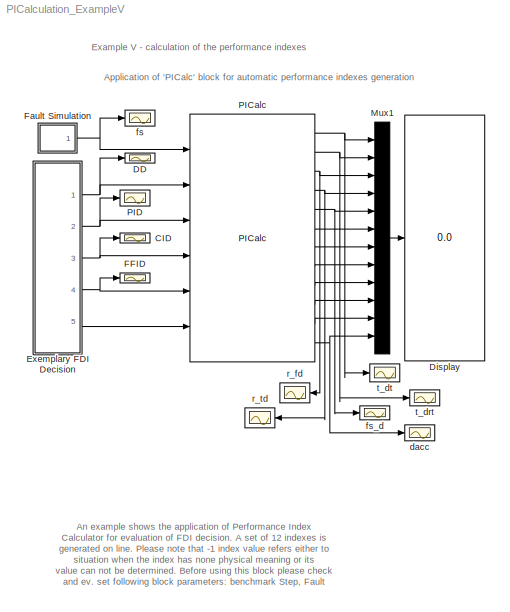
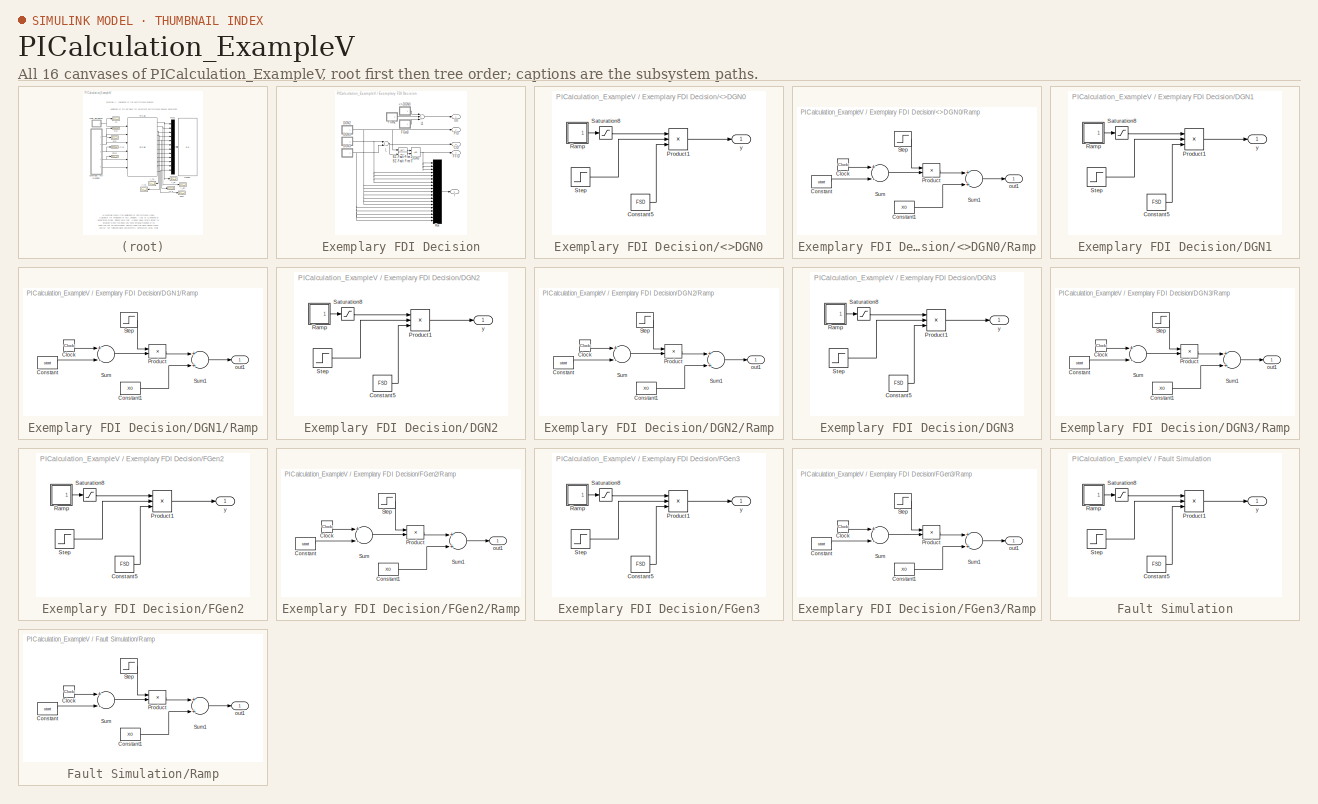
[diagram: thumbnail index - all 16 canvases of the model, root first then tree order]
MODEL PICalculation_ExampleV
KIND model
CONFIG AbsTol = 1e-6
CONFIG FixedStep = 0.1
CONFIG MaxStep = auto
CONFIG RelTol = 1e-3
CONFIG Solver = ode4
CONFIG StartTime = 0.0
CONFIG StopTime = 100
BLOCK [Scope] CID
  Decimation = 1
  Floating = off
  Grid = on
  LimitMaxRows = off
  MaxRows = 5000
  Ports = [1, 0, 0, 0, 0]
  SampleInput = off
  SampleTime = 0
  SaveName = ScopeData
  SaveToWorkspace = off
  TickLabels = on
  TimeRange = auto
  YMax = 5
  YMin = 0
  ZoomMode = on
BLOCK [Scope] DD
  Decimation = 1
  Floating = off
  Grid = on
  LimitMaxRows = off
  MaxRows = 5000
  Ports = [1, 0, 0, 0, 0]
  SampleInput = off
  SampleTime = 0
  SaveName = ScopeData
  SaveToWorkspace = off
  TickLabels = on
  TimeRange = 100
  YMax = 1.1
  YMin = 0
  ZoomMode = on
BLOCK [Display] Display
  Decimation = 1
  Floating = off
  Format = short
  Ports = [1, 0, 0, 0, 0]
  SampleTime = -1
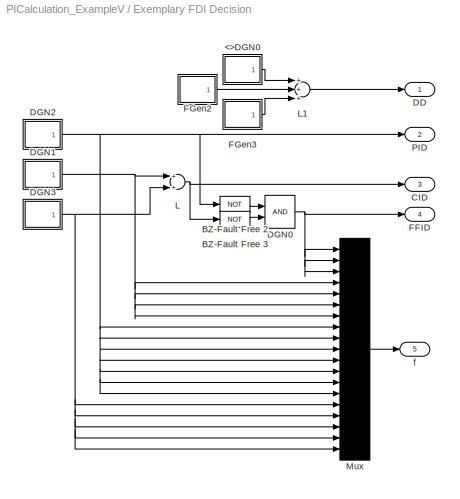
BLOCK [SubSystem] Exemplary FDI Decision
  Ports = [0, 5, 0, 0, 0]
  ShowPortLabels = on
BLOCK [SubSystem] Exemplary FDI Decision/<>DGN0
  MaskDescription = Used for generation of abrupt and incipient standarised fault strength values.\n\nParameters: \nFrom - fault start time [s]\nTo - fault decay time [s] \nMax Fault Strength - maximum fault strength value that will be reached during simulation [standarised range - 0 1]\nFault Development Time - after this time Max Fault Strength will be reached [s]\nDirection - defines the sign of fault strength.  <repeated x7 — deduplicated; at blocks: <>DGN0, DGN1, DGN2, DGN3, FGen2, FGen3, Fault Simulation>
  MaskDisplay = disp('FGen')
  MaskHelp = web( [ 'file:///' which('DABLib.pdf')]);
  MaskIconFrame = on
  MaskIconOpaque = on
  MaskIconRotate = port
  MaskIconUnits = normalized
  MaskInitialization = if FDT==0\n FDS = 99999999999999999999999999;\nelse\n FDS = MFS / FDT;\nend\nif To==inf\n To = 99999999999999999999999999;\nend\nif FSD >= 0\nFSD=1;\nelse\nFSD=-1;\nend
  MaskPromptString = From:|To:|Max Fault Strength:|Fault Development Time:|Direction:
  MaskStyleString = edit,edit,edit,edit,edit
  MaskTunableValueString = on,on,on,on,on
  MaskType = Fault generator
  MaskValueString = 50|80|1|0|1
  MaskVariables = From=@1;To=@2;MFS=@3;FDT=@4;FSD=@5;
  Ports = [0, 1, 0, 0, 0]
  ShowPortLabels = on
BLOCK [Constant] Exemplary FDI Decision/<>DGN0/Constant5
  Value = FSD
BLOCK [Product] Exemplary FDI Decision/<>DGN0/Product1
  Inputs = 3
  Ports = [3, 1, 0, 0, 0]
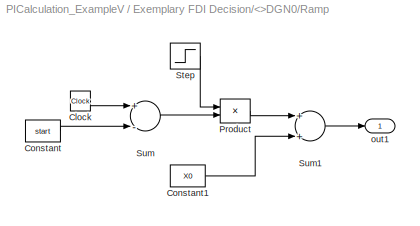
BLOCK [SubSystem] Exemplary FDI Decision/<>DGN0/Ramp
  MaskDescription = ramp
  MaskDisplay = plot([0:10],[1,1,1,1:8])
  MaskIconFrame = on
  MaskIconOpaque = on
  MaskIconRotate = none
  MaskIconUnits = autoscale
  MaskPromptString = Slope:|Start time:|Initial output:
  MaskStyleString = edit,edit,edit
  MaskTunableValueString = on,on,on
  MaskType = Ramp
  MaskValueString = FDS|From|0
  MaskVariables = slope=@1;start=@2;X0=@3;
  Ports = [0, 1, 0, 0, 0]
  ShowPortLabels = on
BLOCK [Clock] Exemplary FDI Decision/<>DGN0/Ramp/Clock
BLOCK [Constant] Exemplary FDI Decision/<>DGN0/Ramp/Constant
  Value = start
BLOCK [Constant] Exemplary FDI Decision/<>DGN0/Ramp/Constant1
  Value = X0
BLOCK [Product] Exemplary FDI Decision/<>DGN0/Ramp/Product
  Inputs = 2
  Ports = [2, 1, 0, 0, 0]
BLOCK [Step] Exemplary FDI Decision/<>DGN0/Ramp/Step
  After = slope
  Before = 0
  Time = start
BLOCK [Sum] Exemplary FDI Decision/<>DGN0/Ramp/Sum
  Inputs = +-
  Ports = [2, 1, 0, 0, 0]
BLOCK [Sum] Exemplary FDI Decision/<>DGN0/Ramp/Sum1
  Inputs = ++
  Ports = [2, 1, 0, 0, 0]
BLOCK [Outport] Exemplary FDI Decision/<>DGN0/Ramp/out1
  InitialOutput = []
  OutputWhenDisabled = held
  Port = 1
BLOCK [Saturate] Exemplary FDI Decision/<>DGN0/Saturation8
  LowerLimit = 0
  UpperLimit = MFS
BLOCK [Step] Exemplary FDI Decision/<>DGN0/Step
  After = 0
  Before = 1
  Time = To
BLOCK [Outport] Exemplary FDI Decision/<>DGN0/y
  InitialOutput = 0
  OutputWhenDisabled = held
  Port = 1
BLOCK [Logic] Exemplary FDI Decision/BZ-Fault Free 2
  Inputs = 1
  Operator = NOT
  Ports = [1, 1, 0, 0, 0]
BLOCK [Logic] Exemplary FDI Decision/BZ-Fault Free 3
  Inputs = 1
  Operator = NOT
  Ports = [1, 1, 0, 0, 0]
BLOCK [Outport] Exemplary FDI Decision/CID
  InitialOutput = 0
  OutputWhenDisabled = held
  Port = 3
BLOCK [Outport] Exemplary FDI Decision/DD
  InitialOutput = 0
  OutputWhenDisabled = held
  Port = 1
BLOCK [Logic] Exemplary FDI Decision/DGN0
  Inputs = 2
  Operator = AND
  Ports = [2, 1, 0, 0, 0]
BLOCK [SubSystem] Exemplary FDI Decision/DGN1
  MaskDisplay = disp('FGen')
  MaskHelp = web( [ 'file:///' which('DABLib.pdf')]);
  MaskIconFrame = on
  MaskIconOpaque = on
  MaskIconRotate = port
  MaskIconUnits = normalized
  MaskInitialization = if FDT==0\n FDS = 99999999999999999999999999;\nelse\n FDS = MFS / FDT;\nend\nif To==inf\n To = 99999999999999999999999999;\nend\nif FSD >= 0\nFSD=1;\nelse\nFSD=-1;\nend
  MaskPromptString = From:|To:|Max Fault Strength:|Fault Development Time:|Direction:
  MaskStyleString = edit,edit,edit,edit,edit
  MaskTunableValueString = on,on,on,on,on
  MaskType = Fault generator
  MaskValueString = 25|35|1|0|1
  MaskVariables = From=@1;To=@2;MFS=@3;FDT=@4;FSD=@5;
  Ports = [0, 1, 0, 0, 0]
  ShowPortLabels = on
BLOCK [Constant] Exemplary FDI Decision/DGN1/Constant5
  Value = FSD
BLOCK [Product] Exemplary FDI Decision/DGN1/Product1
  Inputs = 3
  Ports = [3, 1, 0, 0, 0]
BLOCK [SubSystem] Exemplary FDI Decision/DGN1/Ramp
  MaskDescription = ramp
  MaskDisplay = plot([0:10],[1,1,1,1:8])
  MaskIconFrame = on
  MaskIconOpaque = on
  MaskIconRotate = none
  MaskIconUnits = autoscale
  MaskPromptString = Slope:|Start time:|Initial output:
  MaskStyleString = edit,edit,edit
  MaskTunableValueString = on,on,on
  MaskType = Ramp
  MaskValueString = FDS|From|0
  MaskVariables = slope=@1;start=@2;X0=@3;
  Ports = [0, 1, 0, 0, 0]
  ShowPortLabels = on
BLOCK [Clock] Exemplary FDI Decision/DGN1/Ramp/Clock
BLOCK [Constant] Exemplary FDI Decision/DGN1/Ramp/Constant
  Value = start
BLOCK [Constant] Exemplary FDI Decision/DGN1/Ramp/Constant1
  Value = X0
BLOCK [Product] Exemplary FDI Decision/DGN1/Ramp/Product
  Inputs = 2
  Ports = [2, 1, 0, 0, 0]
BLOCK [Step] Exemplary FDI Decision/DGN1/Ramp/Step
  After = slope
  Before = 0
  Time = start
BLOCK [Sum] Exemplary FDI Decision/DGN1/Ramp/Sum
  Inputs = +-
  Ports = [2, 1, 0, 0, 0]
BLOCK [Sum] Exemplary FDI Decision/DGN1/Ramp/Sum1
  Inputs = ++
  Ports = [2, 1, 0, 0, 0]
BLOCK [Outport] Exemplary FDI Decision/DGN1/Ramp/out1
  InitialOutput = []
  OutputWhenDisabled = held
  Port = 1
BLOCK [Saturate] Exemplary FDI Decision/DGN1/Saturation8
  LowerLimit = 0
  UpperLimit = MFS
BLOCK [Step] Exemplary FDI Decision/DGN1/Step
  After = 0
  Before = 1
  Time = To
BLOCK [Outport] Exemplary FDI Decision/DGN1/y
  InitialOutput = 0
  OutputWhenDisabled = held
  Port = 1
BLOCK [SubSystem] Exemplary FDI Decision/DGN2
  MaskDisplay = disp('FGen')
  MaskHelp = web( [ 'file:///' which('DABLib.pdf')]);
  MaskIconFrame = on
  MaskIconOpaque = on
  MaskIconRotate = port
  MaskIconUnits = normalized
  MaskInitialization = if FDT==0\n FDS = 99999999999999999999999999;\nelse\n FDS = MFS / FDT;\nend\nif To==inf\n To = 99999999999999999999999999;\nend\nif FSD >= 0\nFSD=1;\nelse\nFSD=-1;\nend
  MaskPromptString = From:|To:|Max Fault Strength:|Fault Development Time:|Direction:
  MaskStyleString = edit,edit,edit,edit,edit
  MaskTunableValueString = on,on,on,on,on
  MaskType = Fault generator
  MaskValueString = 45|50|1|0|1
  MaskVariables = From=@1;To=@2;MFS=@3;FDT=@4;FSD=@5;
  Ports = [0, 1, 0, 0, 0]
  ShowPortLabels = on
BLOCK [Constant] Exemplary FDI Decision/DGN2/Constant5
  Value = FSD
BLOCK [Product] Exemplary FDI Decision/DGN2/Product1
  Inputs = 3
  Ports = [3, 1, 0, 0, 0]
BLOCK [SubSystem] Exemplary FDI Decision/DGN2/Ramp
  MaskDescription = ramp
  MaskDisplay = plot([0:10],[1,1,1,1:8])
  MaskIconFrame = on
  MaskIconOpaque = on
  MaskIconRotate = none
  MaskIconUnits = autoscale
  MaskPromptString = Slope:|Start time:|Initial output:
  MaskStyleString = edit,edit,edit
  MaskTunableValueString = on,on,on
  MaskType = Ramp
  MaskValueString = FDS|From|0
  MaskVariables = slope=@1;start=@2;X0=@3;
  Ports = [0, 1, 0, 0, 0]
  ShowPortLabels = on
BLOCK [Clock] Exemplary FDI Decision/DGN2/Ramp/Clock
BLOCK [Constant] Exemplary FDI Decision/DGN2/Ramp/Constant
  Value = start
BLOCK [Constant] Exemplary FDI Decision/DGN2/Ramp/Constant1
  Value = X0
BLOCK [Product] Exemplary FDI Decision/DGN2/Ramp/Product
  Inputs = 2
  Ports = [2, 1, 0, 0, 0]
BLOCK [Step] Exemplary FDI Decision/DGN2/Ramp/Step
  After = slope
  Before = 0
  Time = start
BLOCK [Sum] Exemplary FDI Decision/DGN2/Ramp/Sum
  Inputs = +-
  Ports = [2, 1, 0, 0, 0]
BLOCK [Sum] Exemplary FDI Decision/DGN2/Ramp/Sum1
  Inputs = ++
  Ports = [2, 1, 0, 0, 0]
BLOCK [Outport] Exemplary FDI Decision/DGN2/Ramp/out1
  InitialOutput = []
  OutputWhenDisabled = held
  Port = 1
BLOCK [Saturate] Exemplary FDI Decision/DGN2/Saturation8
  LowerLimit = 0
  UpperLimit = MFS
BLOCK [Step] Exemplary FDI Decision/DGN2/Step
  After = 0
  Before = 1
  Time = To
BLOCK [Outport] Exemplary FDI Decision/DGN2/y
  InitialOutput = 0
  OutputWhenDisabled = held
  Port = 1
BLOCK [SubSystem] Exemplary FDI Decision/DGN3
  MaskDisplay = disp('FGen')
  MaskHelp = web( [ 'file:///' which('DABLib.pdf')]);
  MaskIconFrame = on
  MaskIconOpaque = on
  MaskIconRotate = port
  MaskIconUnits = normalized
  MaskInitialization = if FDT==0\n FDS = 99999999999999999999999999;\nelse\n FDS = MFS / FDT;\nend\nif To==inf\n To = 99999999999999999999999999;\nend\nif FSD >= 0\nFSD=1;\nelse\nFSD=-1;\nend
  MaskPromptString = From:|To:|Max Fault Strength:|Fault Development Time:|Direction:
  MaskStyleString = edit,edit,edit,edit,edit
  MaskTunableValueString = on,on,on,on,on
  MaskType = Fault generator
  MaskValueString = 30|40|1|0|1
  MaskVariables = From=@1;To=@2;MFS=@3;FDT=@4;FSD=@5;
  Ports = [0, 1, 0, 0, 0]
  ShowPortLabels = on
BLOCK [Constant] Exemplary FDI Decision/DGN3/Constant5
  Value = FSD
BLOCK [Product] Exemplary FDI Decision/DGN3/Product1
  Inputs = 3
  Ports = [3, 1, 0, 0, 0]
BLOCK [SubSystem] Exemplary FDI Decision/DGN3/Ramp
  MaskDescription = ramp
  MaskDisplay = plot([0:10],[1,1,1,1:8])
  MaskIconFrame = on
  MaskIconOpaque = on
  MaskIconRotate = none
  MaskIconUnits = autoscale
  MaskPromptString = Slope:|Start time:|Initial output:
  MaskStyleString = edit,edit,edit
  MaskTunableValueString = on,on,on
  MaskType = Ramp
  MaskValueString = FDS|From|0
  MaskVariables = slope=@1;start=@2;X0=@3;
  Ports = [0, 1, 0, 0, 0]
  ShowPortLabels = on
BLOCK [Clock] Exemplary FDI Decision/DGN3/Ramp/Clock
BLOCK [Constant] Exemplary FDI Decision/DGN3/Ramp/Constant
  Value = start
BLOCK [Constant] Exemplary FDI Decision/DGN3/Ramp/Constant1
  Value = X0
BLOCK [Product] Exemplary FDI Decision/DGN3/Ramp/Product
  Inputs = 2
  Ports = [2, 1, 0, 0, 0]
BLOCK [Step] Exemplary FDI Decision/DGN3/Ramp/Step
  After = slope
  Before = 0
  Time = start
BLOCK [Sum] Exemplary FDI Decision/DGN3/Ramp/Sum
  Inputs = +-
  Ports = [2, 1, 0, 0, 0]
BLOCK [Sum] Exemplary FDI Decision/DGN3/Ramp/Sum1
  Inputs = ++
  Ports = [2, 1, 0, 0, 0]
BLOCK [Outport] Exemplary FDI Decision/DGN3/Ramp/out1
  InitialOutput = []
  OutputWhenDisabled = held
  Port = 1
BLOCK [Saturate] Exemplary FDI Decision/DGN3/Saturation8
  LowerLimit = 0
  UpperLimit = MFS
BLOCK [Step] Exemplary FDI Decision/DGN3/Step
  After = 0
  Before = 1
  Time = To
BLOCK [Outport] Exemplary FDI Decision/DGN3/y
  InitialOutput = 0
  OutputWhenDisabled = held
  Port = 1
BLOCK [Outport] Exemplary FDI Decision/FFID
  InitialOutput = 0
  OutputWhenDisabled = held
  Port = 4
BLOCK [SubSystem] Exemplary FDI Decision/FGen2
  MaskDisplay = disp('FGen')
  MaskHelp = web( [ 'file:///' which('DABLib.pdf')]);
  MaskIconFrame = on
  MaskIconOpaque = on
  MaskIconRotate = port
  MaskIconUnits = normalized
  MaskInitialization = if FDT==0\n FDS = 99999999999999999999999999;\nelse\n FDS = MFS / FDT;\nend\nif To==inf\n To = 99999999999999999999999999;\nend\nif FSD >= 0\nFSD=1;\nelse\nFSD=-1;\nend
  MaskPromptString = From:|To:|Max Fault Strength:|Fault Development Time:|Direction:
  MaskStyleString = edit,edit,edit,edit,edit
  MaskTunableValueString = on,on,on,on,on
  MaskType = Fault generator
  MaskValueString = 35|45|1|0|1
  MaskVariables = From=@1;To=@2;MFS=@3;FDT=@4;FSD=@5;
  Ports = [0, 1, 0, 0, 0]
  ShowPortLabels = on
BLOCK [Constant] Exemplary FDI Decision/FGen2/Constant5
  Value = FSD
BLOCK [Product] Exemplary FDI Decision/FGen2/Product1
  Inputs = 3
  Ports = [3, 1, 0, 0, 0]
BLOCK [SubSystem] Exemplary FDI Decision/FGen2/Ramp
  MaskDescription = ramp
  MaskDisplay = plot([0:10],[1,1,1,1:8])
  MaskIconFrame = on
  MaskIconOpaque = on
  MaskIconRotate = none
  MaskIconUnits = autoscale
  MaskPromptString = Slope:|Start time:|Initial output:
  MaskStyleString = edit,edit,edit
  MaskTunableValueString = on,on,on
  MaskType = Ramp
  MaskValueString = FDS|From|0
  MaskVariables = slope=@1;start=@2;X0=@3;
  Ports = [0, 1, 0, 0, 0]
  ShowPortLabels = on
BLOCK [Clock] Exemplary FDI Decision/FGen2/Ramp/Clock
BLOCK [Constant] Exemplary FDI Decision/FGen2/Ramp/Constant
  Value = start
BLOCK [Constant] Exemplary FDI Decision/FGen2/Ramp/Constant1
  Value = X0
BLOCK [Product] Exemplary FDI Decision/FGen2/Ramp/Product
  Inputs = 2
  Ports = [2, 1, 0, 0, 0]
BLOCK [Step] Exemplary FDI Decision/FGen2/Ramp/Step
  After = slope
  Before = 0
  Time = start
BLOCK [Sum] Exemplary FDI Decision/FGen2/Ramp/Sum
  Inputs = +-
  Ports = [2, 1, 0, 0, 0]
BLOCK [Sum] Exemplary FDI Decision/FGen2/Ramp/Sum1
  Inputs = ++
  Ports = [2, 1, 0, 0, 0]
BLOCK [Outport] Exemplary FDI Decision/FGen2/Ramp/out1
  InitialOutput = []
  OutputWhenDisabled = held
  Port = 1
BLOCK [Saturate] Exemplary FDI Decision/FGen2/Saturation8
  LowerLimit = 0
  UpperLimit = MFS
BLOCK [Step] Exemplary FDI Decision/FGen2/Step
  After = 0
  Before = 1
  Time = To
BLOCK [Outport] Exemplary FDI Decision/FGen2/y
  InitialOutput = 0
  OutputWhenDisabled = held
  Port = 1
BLOCK [SubSystem] Exemplary FDI Decision/FGen3
  MaskDisplay = disp('FGen')
  MaskHelp = web( [ 'file:///' which('DABLib.pdf')]);
  MaskIconFrame = on
  MaskIconOpaque = on
  MaskIconRotate = port
  MaskIconUnits = normalized
  MaskInitialization = if FDT==0\n FDS = 99999999999999999999999999;\nelse\n FDS = MFS / FDT;\nend\nif To==inf\n To = 99999999999999999999999999;\nend\nif FSD >= 0\nFSD=1;\nelse\nFSD=-1;\nend
  MaskPromptString = From:|To:|Max Fault Strength:|Fault Development Time:|Direction:
  MaskStyleString = edit,edit,edit,edit,edit
  MaskTunableValueString = on,on,on,on,on
  MaskType = Fault generator
  MaskValueString = 90|95|1|0|1
  MaskVariables = From=@1;To=@2;MFS=@3;FDT=@4;FSD=@5;
  Ports = [0, 1, 0, 0, 0]
  ShowPortLabels = on
BLOCK [Constant] Exemplary FDI Decision/FGen3/Constant5
  Value = FSD
BLOCK [Product] Exemplary FDI Decision/FGen3/Product1
  Inputs = 3
  Ports = [3, 1, 0, 0, 0]
BLOCK [SubSystem] Exemplary FDI Decision/FGen3/Ramp
  MaskDescription = ramp
  MaskDisplay = plot([0:10],[1,1,1,1:8])
  MaskIconFrame = on
  MaskIconOpaque = on
  MaskIconRotate = none
  MaskIconUnits = autoscale
  MaskPromptString = Slope:|Start time:|Initial output:
  MaskStyleString = edit,edit,edit
  MaskTunableValueString = on,on,on
  MaskType = Ramp
  MaskValueString = FDS|From|0
  MaskVariables = slope=@1;start=@2;X0=@3;
  Ports = [0, 1, 0, 0, 0]
  ShowPortLabels = on
BLOCK [Clock] Exemplary FDI Decision/FGen3/Ramp/Clock
BLOCK [Constant] Exemplary FDI Decision/FGen3/Ramp/Constant
  Value = start
BLOCK [Constant] Exemplary FDI Decision/FGen3/Ramp/Constant1
  Value = X0
BLOCK [Product] Exemplary FDI Decision/FGen3/Ramp/Product
  Inputs = 2
  Ports = [2, 1, 0, 0, 0]
BLOCK [Step] Exemplary FDI Decision/FGen3/Ramp/Step
  After = slope
  Before = 0
  Time = start
BLOCK [Sum] Exemplary FDI Decision/FGen3/Ramp/Sum
  Inputs = +-
  Ports = [2, 1, 0, 0, 0]
BLOCK [Sum] Exemplary FDI Decision/FGen3/Ramp/Sum1
  Inputs = ++
  Ports = [2, 1, 0, 0, 0]
BLOCK [Outport] Exemplary FDI Decision/FGen3/Ramp/out1
  InitialOutput = []
  OutputWhenDisabled = held
  Port = 1
BLOCK [Saturate] Exemplary FDI Decision/FGen3/Saturation8
  LowerLimit = 0
  UpperLimit = MFS
BLOCK [Step] Exemplary FDI Decision/FGen3/Step
  After = 0
  Before = 1
  Time = To
BLOCK [Outport] Exemplary FDI Decision/FGen3/y
  InitialOutput = 0
  OutputWhenDisabled = held
  Port = 1
BLOCK [Sum] Exemplary FDI Decision/L
  Inputs = ++
  Ports = [2, 1, 0, 0, 0]
BLOCK [Sum] Exemplary FDI Decision/L1
  Inputs = +++
  Ports = [3, 1, 0, 0, 0]
BLOCK [Mux] Exemplary FDI Decision/Mux
  Inputs = 19
  Ports = [19, 1, 0, 0, 0]
BLOCK [Outport] Exemplary FDI Decision/PID
  InitialOutput = 0
  OutputWhenDisabled = held
  Port = 2
BLOCK [Outport] Exemplary FDI Decision/f
  InitialOutput = 0
  OutputWhenDisabled = held
  Port = 5
BLOCK [Scope] FFID
  Decimation = 1
  Floating = off
  Grid = on
  LimitMaxRows = off
  MaxRows = 5000
  Ports = [1, 0, 0, 0, 0]
  SampleInput = off
  SampleTime = 0
  SaveName = ScopeData
  SaveToWorkspace = off
  TickLabels = on
  TimeRange = auto
  YMax = 1.1
  YMin = 0
  ZoomMode = on
BLOCK [SubSystem] Fault Simulation
  MaskDisplay = disp('FGen')
  MaskHelp = web( [ 'file:///' which('DABLib.pdf')]);
  MaskIconFrame = on
  MaskIconOpaque = on
  MaskIconRotate = port
  MaskIconUnits = normalized
  MaskInitialization = if FDT==0\n FDS = 99999999999999999999999999;\nelse\n FDS = MFS / FDT;\nend\nif To==inf\n To = 99999999999999999999999999;\nend\nif FSD >= 0\nFSD=1;\nelse\nFSD=-1;\nend
  MaskPromptString = From:|To:|Max Fault Strength:|Fault Development Time:|Direction:
  MaskStyleString = edit,edit,edit,edit,edit
  MaskTunableValueString = on,on,on,on,on
  MaskType = Fault generator
  MaskValueString = 25|75|1|25|1
  MaskVariables = From=@1;To=@2;MFS=@3;FDT=@4;FSD=@5;
  Ports = [0, 1, 0, 0, 0]
  ShowPortLabels = on
BLOCK [Constant] Fault Simulation/Constant5
  Value = FSD
BLOCK [Product] Fault Simulation/Product1
  Inputs = 3
  Ports = [3, 1, 0, 0, 0]
BLOCK [SubSystem] Fault Simulation/Ramp
  MaskDescription = ramp
  MaskDisplay = plot([0:10],[1,1,1,1:8])
  MaskIconFrame = on
  MaskIconOpaque = on
  MaskIconRotate = none
  MaskIconUnits = autoscale
  MaskPromptString = Slope:|Start time:|Initial output:
  MaskStyleString = edit,edit,edit
  MaskTunableValueString = on,on,on
  MaskType = Ramp
  MaskValueString = FDS|From|0
  MaskVariables = slope=@1;start=@2;X0=@3;
  Ports = [0, 1, 0, 0, 0]
  ShowPortLabels = on
BLOCK [Clock] Fault Simulation/Ramp/Clock
BLOCK [Constant] Fault Simulation/Ramp/Constant
  Value = start
BLOCK [Constant] Fault Simulation/Ramp/Constant1
  Value = X0
BLOCK [Product] Fault Simulation/Ramp/Product
  Inputs = 2
  Ports = [2, 1, 0, 0, 0]
BLOCK [Step] Fault Simulation/Ramp/Step
  After = slope
  Before = 0
  Time = start
BLOCK [Sum] Fault Simulation/Ramp/Sum
  Inputs = +-
  Ports = [2, 1, 0, 0, 0]
BLOCK [Sum] Fault Simulation/Ramp/Sum1
  Inputs = ++
  Ports = [2, 1, 0, 0, 0]
BLOCK [Outport] Fault Simulation/Ramp/out1
  InitialOutput = []
  OutputWhenDisabled = held
  Port = 1
BLOCK [Saturate] Fault Simulation/Saturation8
  LowerLimit = 0
  UpperLimit = MFS
BLOCK [Step] Fault Simulation/Step
  After = 0
  Before = 1
  Time = To
BLOCK [Outport] Fault Simulation/y
  InitialOutput = 0
  OutputWhenDisabled = held
  Port = 1
BLOCK [Mux] Mux1
  Inputs = 12
  Ports = [12, 1, 0, 0, 0]
BLOCK [Reference] PICalc  REF=DABLib/PICalc
  FSel = NO FAULT
  FType = Abrupt - Small
  Ports = [6, 12, 0, 0, 0]
  SourceBlock = DABLib/PICalc
  SourceType = Performance Indexes Calculator
  Step = Other
  t_hor_ini = 100
  t_on_ini = 0
BLOCK [Scope] PID
  Decimation = 1
  Floating = off
  Grid = on
  LimitMaxRows = off
  MaxRows = 5000
  Ports = [1, 0, 0, 0, 0]
  SampleInput = off
  SampleTime = 0
  SaveName = ScopeData
  SaveToWorkspace = off
  TickLabels = on
  TimeRange = auto
  YMax = 1.1
  YMin = 0
  ZoomMode = on
BLOCK [Scope] dacc
  Decimation = 1
  Floating = off
  Grid = on
  LimitMaxRows = off
  MaxRows = 5000
  Ports = [1, 0, 0, 0, 0]
  SampleInput = off
  SampleTime = 0
  SaveName = ScopeData
  SaveToWorkspace = off
  TickLabels = on
  TimeRange = 100
  YMax = 1.1
  YMin = 0
  ZoomMode = on
BLOCK [Scope] fs
  Decimation = 1
  Floating = off
  Grid = on
  LimitMaxRows = off
  MaxRows = 5000
  Ports = [1, 0, 0, 0, 0]
  SampleInput = off
  SampleTime = 0
  SaveName = ScopeData
  SaveToWorkspace = off
  TickLabels = on
  TimeRange = auto
  YMax = 1.1
  YMin = 0
  ZoomMode = on
BLOCK [Scope] fs_d
  Decimation = 1
  Floating = off
  Grid = on
  LimitMaxRows = off
  MaxRows = 5000
  Ports = [1, 0, 0, 0, 0]
  SampleInput = off
  SampleTime = 0
  SaveName = ScopeData
  SaveToWorkspace = off
  TickLabels = on
  TimeRange = 100
  YMax = 1.1
  YMin = -1
  ZoomMode = on
BLOCK [Scope] r_fd
  Decimation = 1
  Floating = off
  Grid = on
  LimitMaxRows = off
  MaxRows = 5000
  Ports = [1, 0, 0, 0, 0]
  SampleInput = off
  SampleTime = 0
  SaveName = ScopeData
  SaveToWorkspace = off
  TickLabels = on
  TimeRange = 100
  YMax = 1.1
  YMin = -1
  ZoomMode = on
BLOCK [Scope] r_td
  Decimation = 1
  Floating = off
  Grid = on
  LimitMaxRows = off
  MaxRows = 5000
  Ports = [1, 0, 0, 0, 0]
  SampleInput = off
  SampleTime = 0
  SaveName = ScopeData
  SaveToWorkspace = off
  TickLabels = on
  TimeRange = 100
  YMax = 1.1
  YMin = -1
  ZoomMode = on
BLOCK [Scope] t_drt
  Decimation = 1
  Floating = off
  Grid = on
  LimitMaxRows = off
  MaxRows = 5000
  Ports = [1, 0, 0, 0, 0]
  SampleInput = off
  SampleTime = 0
  SaveName = ScopeData
  SaveToWorkspace = off
  TickLabels = on
  TimeRange = 100
  YMax = 30
  YMin = -5
  ZoomMode = on
BLOCK [Scope] t_dt
  Decimation = 1
  Floating = off
  Grid = on
  LimitMaxRows = off
  MaxRows = 5000
  Ports = [1, 0, 0, 0, 0]
  SampleInput = off
  SampleTime = 0
  SaveName = ScopeData
  SaveToWorkspace = off
  TickLabels = on
  TimeRange = 100
  YMax = 11
  YMin = -5
  ZoomMode = on
LINE Exemplary FDI Decision/<>DGN0/Constant5:1 -> Exemplary FDI Decision/<>DGN0/Product1:3
LINE Exemplary FDI Decision/<>DGN0/Product1:1 -> Exemplary FDI Decision/<>DGN0/y:1
LINE Exemplary FDI Decision/<>DGN0/Ramp/Clock:1 -> Exemplary FDI Decision/<>DGN0/Ramp/Sum:1
LINE Exemplary FDI Decision/<>DGN0/Ramp/Constant1:1 -> Exemplary FDI Decision/<>DGN0/Ramp/Sum1:2
LINE Exemplary FDI Decision/<>DGN0/Ramp/Constant:1 -> Exemplary FDI Decision/<>DGN0/Ramp/Sum:2
LINE Exemplary FDI Decision/<>DGN0/Ramp/Product:1 -> Exemplary FDI Decision/<>DGN0/Ramp/Sum1:1
LINE Exemplary FDI Decision/<>DGN0/Ramp/Step:1 -> Exemplary FDI Decision/<>DGN0/Ramp/Product:1
LINE Exemplary FDI Decision/<>DGN0/Ramp/Sum1:1 -> Exemplary FDI Decision/<>DGN0/Ramp/out1:1
LINE Exemplary FDI Decision/<>DGN0/Ramp/Sum:1 -> Exemplary FDI Decision/<>DGN0/Ramp/Product:2
LINE Exemplary FDI Decision/<>DGN0/Ramp:1 -> Exemplary FDI Decision/<>DGN0/Saturation8:1
LINE Exemplary FDI Decision/<>DGN0/Saturation8:1 -> Exemplary FDI Decision/<>DGN0/Product1:1
LINE Exemplary FDI Decision/<>DGN0/Step:1 -> Exemplary FDI Decision/<>DGN0/Product1:2
LINE Exemplary FDI Decision/<>DGN0:1 -> Exemplary FDI Decision/L1:1
LINE Exemplary FDI Decision/BZ-Fault Free 2:1 -> Exemplary FDI Decision/DGN0:1
LINE Exemplary FDI Decision/BZ-Fault Free 3:1 -> Exemplary FDI Decision/DGN0:2
NET Exemplary FDI Decision/DGN0:1 -> Exemplary FDI Decision/FFID:1, Exemplary FDI Decision/Mux:1, Exemplary FDI Decision/Mux:2, Exemplary FDI Decision/Mux:3
LINE Exemplary FDI Decision/DGN1/Constant5:1 -> Exemplary FDI Decision/DGN1/Product1:3
LINE Exemplary FDI Decision/DGN1/Product1:1 -> Exemplary FDI Decision/DGN1/y:1
LINE Exemplary FDI Decision/DGN1/Ramp/Clock:1 -> Exemplary FDI Decision/DGN1/Ramp/Sum:1
LINE Exemplary FDI Decision/DGN1/Ramp/Constant1:1 -> Exemplary FDI Decision/DGN1/Ramp/Sum1:2
LINE Exemplary FDI Decision/DGN1/Ramp/Constant:1 -> Exemplary FDI Decision/DGN1/Ramp/Sum:2
LINE Exemplary FDI Decision/DGN1/Ramp/Product:1 -> Exemplary FDI Decision/DGN1/Ramp/Sum1:1
LINE Exemplary FDI Decision/DGN1/Ramp/Step:1 -> Exemplary FDI Decision/DGN1/Ramp/Product:1
LINE Exemplary FDI Decision/DGN1/Ramp/Sum1:1 -> Exemplary FDI Decision/DGN1/Ramp/out1:1
LINE Exemplary FDI Decision/DGN1/Ramp/Sum:1 -> Exemplary FDI Decision/DGN1/Ramp/Product:2
LINE Exemplary FDI Decision/DGN1/Ramp:1 -> Exemplary FDI Decision/DGN1/Saturation8:1
LINE Exemplary FDI Decision/DGN1/Saturation8:1 -> Exemplary FDI Decision/DGN1/Product1:1
LINE Exemplary FDI Decision/DGN1/Step:1 -> Exemplary FDI Decision/DGN1/Product1:2
NET Exemplary FDI Decision/DGN1:1 -> Exemplary FDI Decision/L:1, Exemplary FDI Decision/Mux:4, Exemplary FDI Decision/Mux:5, Exemplary FDI Decision/Mux:6, Exemplary FDI Decision/Mux:7
LINE Exemplary FDI Decision/DGN2/Constant5:1 -> Exemplary FDI Decision/DGN2/Product1:3
LINE Exemplary FDI Decision/DGN2/Product1:1 -> Exemplary FDI Decision/DGN2/y:1
LINE Exemplary FDI Decision/DGN2/Ramp/Clock:1 -> Exemplary FDI Decision/DGN2/Ramp/Sum:1
LINE Exemplary FDI Decision/DGN2/Ramp/Constant1:1 -> Exemplary FDI Decision/DGN2/Ramp/Sum1:2
LINE Exemplary FDI Decision/DGN2/Ramp/Constant:1 -> Exemplary FDI Decision/DGN2/Ramp/Sum:2
LINE Exemplary FDI Decision/DGN2/Ramp/Product:1 -> Exemplary FDI Decision/DGN2/Ramp/Sum1:1
LINE Exemplary FDI Decision/DGN2/Ramp/Step:1 -> Exemplary FDI Decision/DGN2/Ramp/Product:1
LINE Exemplary FDI Decision/DGN2/Ramp/Sum1:1 -> Exemplary FDI Decision/DGN2/Ramp/out1:1
LINE Exemplary FDI Decision/DGN2/Ramp/Sum:1 -> Exemplary FDI Decision/DGN2/Ramp/Product:2
LINE Exemplary FDI Decision/DGN2/Ramp:1 -> Exemplary FDI Decision/DGN2/Saturation8:1
LINE Exemplary FDI Decision/DGN2/Saturation8:1 -> Exemplary FDI Decision/DGN2/Product1:1
LINE Exemplary FDI Decision/DGN2/Step:1 -> Exemplary FDI Decision/DGN2/Product1:2
NET Exemplary FDI Decision/DGN2:1 -> Exemplary FDI Decision/BZ-Fault Free 2:1, Exemplary FDI Decision/Mux:10, Exemplary FDI Decision/Mux:11, Exemplary FDI Decision/Mux:12, Exemplary FDI Decision/Mux:13, Exemplary FDI Decision/Mux:14, Exemplary FDI Decision/Mux:8, Exemplary FDI Decision/Mux:9, Exemplary FDI Decision/PID:1
LINE Exemplary FDI Decision/DGN3/Constant5:1 -> Exemplary FDI Decision/DGN3/Product1:3
LINE Exemplary FDI Decision/DGN3/Product1:1 -> Exemplary FDI Decision/DGN3/y:1
LINE Exemplary FDI Decision/DGN3/Ramp/Clock:1 -> Exemplary FDI Decision/DGN3/Ramp/Sum:1
LINE Exemplary FDI Decision/DGN3/Ramp/Constant1:1 -> Exemplary FDI Decision/DGN3/Ramp/Sum1:2
LINE Exemplary FDI Decision/DGN3/Ramp/Constant:1 -> Exemplary FDI Decision/DGN3/Ramp/Sum:2
LINE Exemplary FDI Decision/DGN3/Ramp/Product:1 -> Exemplary FDI Decision/DGN3/Ramp/Sum1:1
LINE Exemplary FDI Decision/DGN3/Ramp/Step:1 -> Exemplary FDI Decision/DGN3/Ramp/Product:1
LINE Exemplary FDI Decision/DGN3/Ramp/Sum1:1 -> Exemplary FDI Decision/DGN3/Ramp/out1:1
LINE Exemplary FDI Decision/DGN3/Ramp/Sum:1 -> Exemplary FDI Decision/DGN3/Ramp/Product:2
LINE Exemplary FDI Decision/DGN3/Ramp:1 -> Exemplary FDI Decision/DGN3/Saturation8:1
LINE Exemplary FDI Decision/DGN3/Saturation8:1 -> Exemplary FDI Decision/DGN3/Product1:1
LINE Exemplary FDI Decision/DGN3/Step:1 -> Exemplary FDI Decision/DGN3/Product1:2
NET Exemplary FDI Decision/DGN3:1 -> Exemplary FDI Decision/L:2, Exemplary FDI Decision/Mux:15, Exemplary FDI Decision/Mux:16, Exemplary FDI Decision/Mux:17, Exemplary FDI Decision/Mux:18, Exemplary FDI Decision/Mux:19
LINE Exemplary FDI Decision/FGen2/Constant5:1 -> Exemplary FDI Decision/FGen2/Product1:3
LINE Exemplary FDI Decision/FGen2/Product1:1 -> Exemplary FDI Decision/FGen2/y:1
LINE Exemplary FDI Decision/FGen2/Ramp/Clock:1 -> Exemplary FDI Decision/FGen2/Ramp/Sum:1
LINE Exemplary FDI Decision/FGen2/Ramp/Constant1:1 -> Exemplary FDI Decision/FGen2/Ramp/Sum1:2
LINE Exemplary FDI Decision/FGen2/Ramp/Constant:1 -> Exemplary FDI Decision/FGen2/Ramp/Sum:2
LINE Exemplary FDI Decision/FGen2/Ramp/Product:1 -> Exemplary FDI Decision/FGen2/Ramp/Sum1:1
LINE Exemplary FDI Decision/FGen2/Ramp/Step:1 -> Exemplary FDI Decision/FGen2/Ramp/Product:1
LINE Exemplary FDI Decision/FGen2/Ramp/Sum1:1 -> Exemplary FDI Decision/FGen2/Ramp/out1:1
LINE Exemplary FDI Decision/FGen2/Ramp/Sum:1 -> Exemplary FDI Decision/FGen2/Ramp/Product:2
LINE Exemplary FDI Decision/FGen2/Ramp:1 -> Exemplary FDI Decision/FGen2/Saturation8:1
LINE Exemplary FDI Decision/FGen2/Saturation8:1 -> Exemplary FDI Decision/FGen2/Product1:1
LINE Exemplary FDI Decision/FGen2/Step:1 -> Exemplary FDI Decision/FGen2/Product1:2
LINE Exemplary FDI Decision/FGen2:1 -> Exemplary FDI Decision/L1:2
LINE Exemplary FDI Decision/FGen3/Constant5:1 -> Exemplary FDI Decision/FGen3/Product1:3
LINE Exemplary FDI Decision/FGen3/Product1:1 -> Exemplary FDI Decision/FGen3/y:1
LINE Exemplary FDI Decision/FGen3/Ramp/Clock:1 -> Exemplary FDI Decision/FGen3/Ramp/Sum:1
LINE Exemplary FDI Decision/FGen3/Ramp/Constant1:1 -> Exemplary FDI Decision/FGen3/Ramp/Sum1:2
LINE Exemplary FDI Decision/FGen3/Ramp/Constant:1 -> Exemplary FDI Decision/FGen3/Ramp/Sum:2
LINE Exemplary FDI Decision/FGen3/Ramp/Product:1 -> Exemplary FDI Decision/FGen3/Ramp/Sum1:1
LINE Exemplary FDI Decision/FGen3/Ramp/Step:1 -> Exemplary FDI Decision/FGen3/Ramp/Product:1
LINE Exemplary FDI Decision/FGen3/Ramp/Sum1:1 -> Exemplary FDI Decision/FGen3/Ramp/out1:1
LINE Exemplary FDI Decision/FGen3/Ramp/Sum:1 -> Exemplary FDI Decision/FGen3/Ramp/Product:2
LINE Exemplary FDI Decision/FGen3/Ramp:1 -> Exemplary FDI Decision/FGen3/Saturation8:1
LINE Exemplary FDI Decision/FGen3/Saturation8:1 -> Exemplary FDI Decision/FGen3/Product1:1
LINE Exemplary FDI Decision/FGen3/Step:1 -> Exemplary FDI Decision/FGen3/Product1:2
LINE Exemplary FDI Decision/FGen3:1 -> Exemplary FDI Decision/L1:3
LINE Exemplary FDI Decision/L1:1 -> Exemplary FDI Decision/DD:1
NET Exemplary FDI Decision/L:1 -> Exemplary FDI Decision/BZ-Fault Free 3:1, Exemplary FDI Decision/CID:1
LINE Exemplary FDI Decision/Mux:1 -> Exemplary FDI Decision/f:1
NET Exemplary FDI Decision:1 -> DD:1, PICalc:2
NET Exemplary FDI Decision:2 -> PICalc:3, PID:1
NET Exemplary FDI Decision:3 -> CID:1, PICalc:4
NET Exemplary FDI Decision:4 -> FFID:1, PICalc:5
LINE Exemplary FDI Decision:5 -> PICalc:6
LINE Fault Simulation/Constant5:1 -> Fault Simulation/Product1:3
LINE Fault Simulation/Product1:1 -> Fault Simulation/y:1
LINE Fault Simulation/Ramp/Clock:1 -> Fault Simulation/Ramp/Sum:1
LINE Fault Simulation/Ramp/Constant1:1 -> Fault Simulation/Ramp/Sum1:2
LINE Fault Simulation/Ramp/Constant:1 -> Fault Simulation/Ramp/Sum:2
LINE Fault Simulation/Ramp/Product:1 -> Fault Simulation/Ramp/Sum1:1
LINE Fault Simulation/Ramp/Step:1 -> Fault Simulation/Ramp/Product:1
LINE Fault Simulation/Ramp/Sum1:1 -> Fault Simulation/Ramp/out1:1
LINE Fault Simulation/Ramp/Sum:1 -> Fault Simulation/Ramp/Product:2
LINE Fault Simulation/Ramp:1 -> Fault Simulation/Saturation8:1
LINE Fault Simulation/Saturation8:1 -> Fault Simulation/Product1:1
LINE Fault Simulation/Step:1 -> Fault Simulation/Product1:2
NET Fault Simulation:1 -> PICalc:1, fs:1
LINE Mux1:1 -> Display:1
NET PICalc:1 -> Mux1:1, t_dt:1
LINE PICalc:10 -> Mux1:10
LINE PICalc:11 -> Mux1:11
NET PICalc:12 -> Mux1:12, dacc:1
NET PICalc:2 -> Mux1:2, t_drt:1
NET PICalc:3 -> Mux1:3, r_fd:1
NET PICalc:4 -> Mux1:4, r_td:1
NET PICalc:5 -> Mux1:5, fs_d:1
LINE PICalc:6 -> Mux1:6
LINE PICalc:7 -> Mux1:7
LINE PICalc:8 -> Mux1:8
LINE PICalc:9 -> Mux1:9
note: NET lines group one-source signal fan-out (src -> all destinations, sorted); 1:1 wires keep LINE
